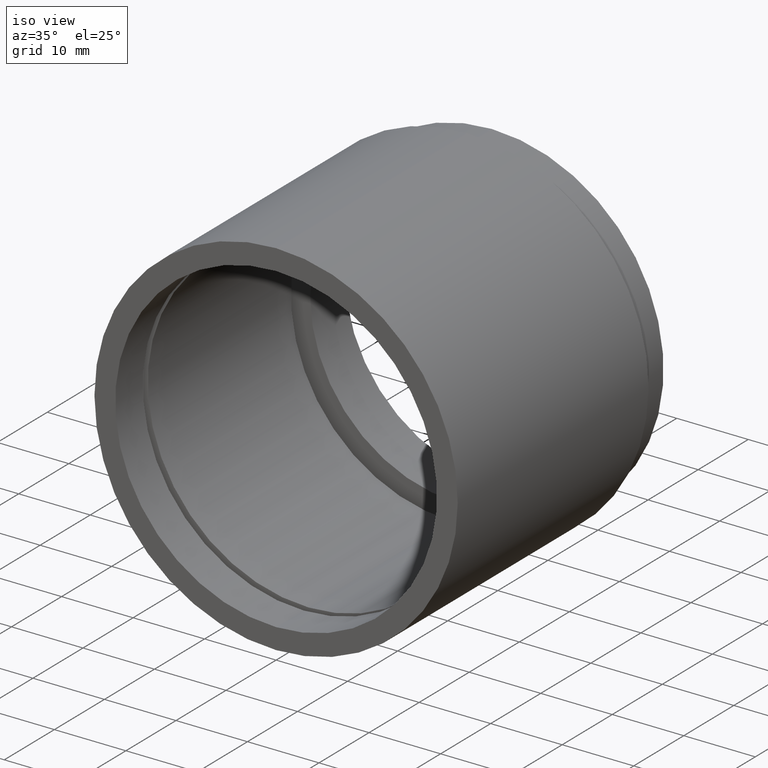
[diagram: clean part render]
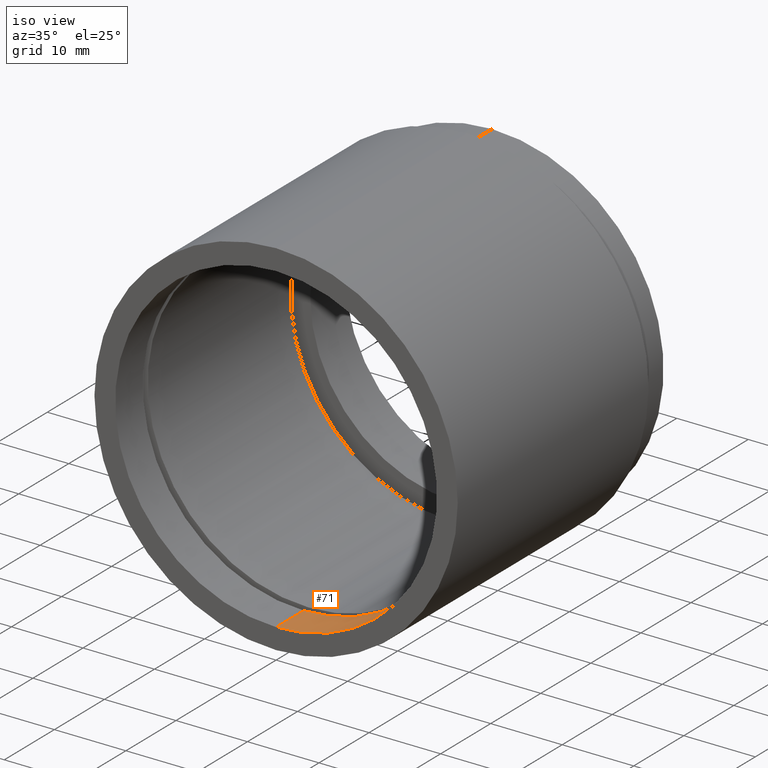
[diagram: same view with one face highlighted and labeled with its STEP entity id]
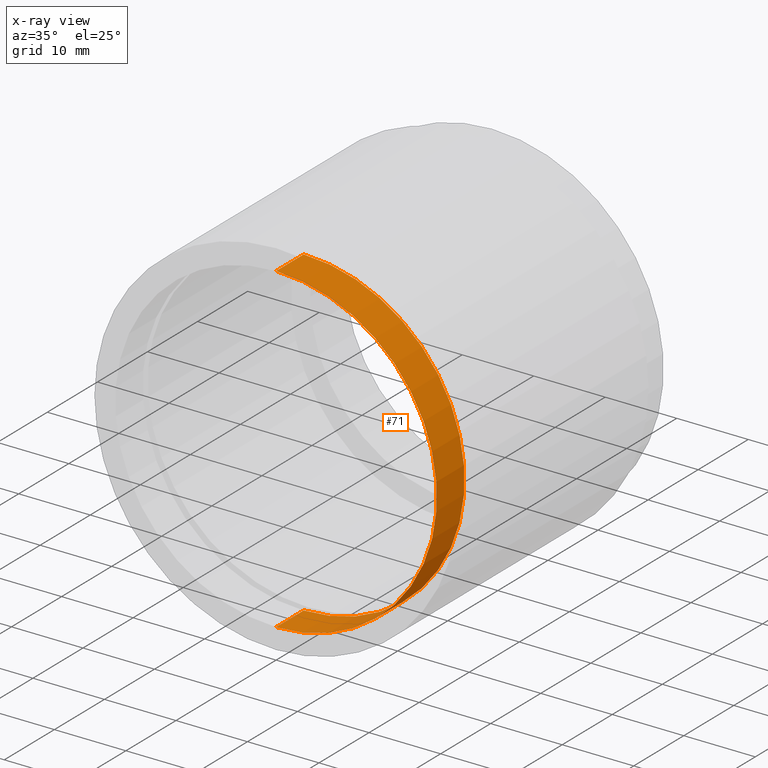
[diagram: x-ray of the same camera — body ghosted, the highlighted face saturated]
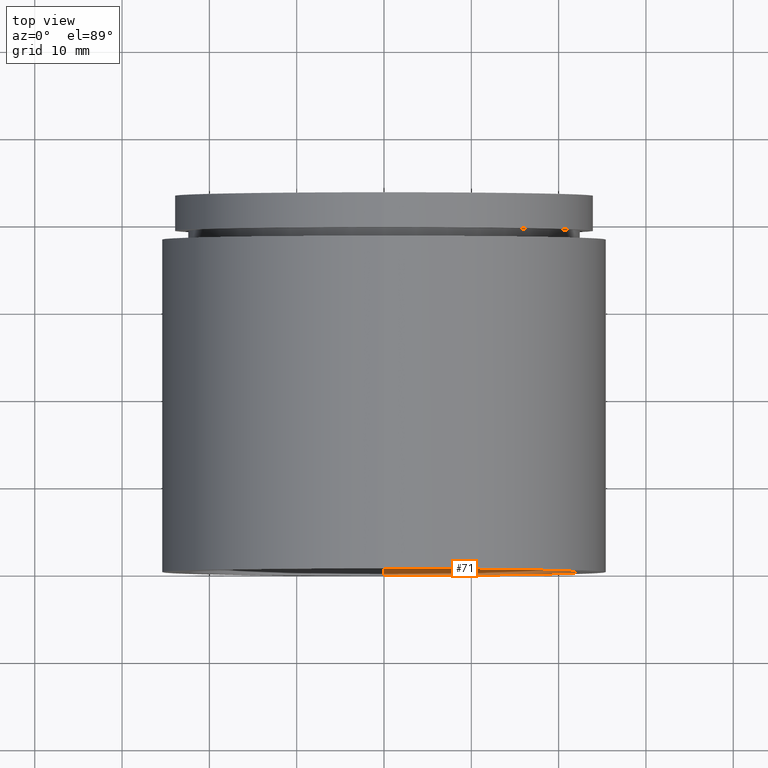
[diagram: same view with one face highlighted and labeled with its STEP entity id]
A machine part, iso view. The second image highlights one B-rep face of the part: STEP entity #71.
The next image is the same camera in x-ray: the body ghosted, the highlighted face saturated — about 0% of this face is hidden behind the body in this view.
A second angle (top view) of the same face is appended — the face is thin or edge-on in the first view.
In plain terms, the highlighted cylindrical surface (partial cylindrical patch) has radius 22.5 mm, axis along (-0, 1, -0).
Its self-contained STEP definition (entity closure, byte-faithful):
#6 = CARTESIAN_POINT ( 'NONE',  ( 0.0000000000000000000, 5.499999999999976900, 22.50000000000002100 ) ) ;
#42 = CIRCLE ( 'NONE', #115, 22.50000000000002100 ) ;
#44 = AXIS2_PLACEMENT_3D ( 'NONE', #615, #235, #729 ) ;
#47 = EDGE_LOOP ( 'NONE', ( #66, #762, #318, #506 ) ) ;
#61 = VECTOR ( 'NONE', #613, 1000.000000000000000 ) ;
#66 = ORIENTED_EDGE ( 'NONE', *, *, #218, .F. ) ;
#71 = ADVANCED_FACE ( 'NONE', ( #316 ), #699, .F. ) ;
#100 = LINE ( 'NONE', #370, #61 ) ;
#115 = AXIS2_PLACEMENT_3D ( 'NONE', #364, #797, #619 ) ;
#143 = CIRCLE ( 'NONE', #44, 22.50000000000002100 ) ;
#187 = CARTESIAN_POINT ( 'NONE',  ( 2.755455298081547100E-015, -2.775557561562891400E-014, -22.50000000000002100 ) ) ;
#189 = DIRECTION ( 'NONE',  ( 0.0000000000000000000, 0.0000000000000000000, 1.000000000000000000 ) ) ;
#218 = EDGE_CURVE ( 'NONE', #671, #586, #367, .T. ) ;
#235 = DIRECTION ( 'NONE',  ( -0.0000000000000000000, 1.000000000000000000, -0.0000000000000000000 ) ) ;
#244 = CARTESIAN_POINT ( 'NONE',  ( 2.755455298081547100E-015, 5.499999999999976900, -22.50000000000002100 ) ) ;
#261 = DIRECTION ( 'NONE',  ( -0.0000000000000000000, 1.000000000000000000, -0.0000000000000000000 ) ) ;
#283 = DIRECTION ( 'NONE',  ( -0.0000000000000000000, 1.000000000000000000, -0.0000000000000000000 ) ) ;
#316 = FACE_OUTER_BOUND ( 'NONE', #47, .T. ) ;
#318 = ORIENTED_EDGE ( 'NONE', *, *, #369, .T. ) ;
#364 = CARTESIAN_POINT ( 'NONE',  ( 0.0000000000000000000, 5.499999999999976900, 0.0000000000000000000 ) ) ;
#367 = LINE ( 'NONE', #398, #672 ) ;
#369 = EDGE_CURVE ( 'NONE', #771, #690, #100, .T. ) ;
#370 = CARTESIAN_POINT ( 'NONE',  ( 0.0000000000000000000, 161.3761669434274500, 22.50000000000002100 ) ) ;
#398 = CARTESIAN_POINT ( 'NONE',  ( 2.755455298081547100E-015, 161.3761669434274500, -22.50000000000002100 ) ) ;
#411 = EDGE_CURVE ( 'NONE', #771, #671, #143, .T. ) ;
#447 = AXIS2_PLACEMENT_3D ( 'NONE', #627, #261, #189 ) ;
#449 = CARTESIAN_POINT ( 'NONE',  ( 0.0000000000000000000, -2.775557561562891400E-014, 22.50000000000002100 ) ) ;
#453 = EDGE_CURVE ( 'NONE', #690, #586, #42, .T. ) ;
#506 = ORIENTED_EDGE ( 'NONE', *, *, #453, .T. ) ;
#586 = VERTEX_POINT ( 'NONE', #244 ) ;
#613 = DIRECTION ( 'NONE',  ( -0.0000000000000000000, 1.000000000000000000, -0.0000000000000000000 ) ) ;
#615 = CARTESIAN_POINT ( 'NONE',  ( 0.0000000000000000000, -2.775557561562891400E-014, 0.0000000000000000000 ) ) ;
#619 = DIRECTION ( 'NONE',  ( 0.0000000000000000000, 0.0000000000000000000, 1.000000000000000000 ) ) ;
#627 = CARTESIAN_POINT ( 'NONE',  ( 0.0000000000000000000, 161.3761669434274500, 0.0000000000000000000 ) ) ;
#671 = VERTEX_POINT ( 'NONE', #187 ) ;
#672 = VECTOR ( 'NONE', #283, 1000.000000000000000 ) ;
#690 = VERTEX_POINT ( 'NONE', #6 ) ;
#699 = CYLINDRICAL_SURFACE ( 'NONE', #447, 22.50000000000002100 ) ;
#729 = DIRECTION ( 'NONE',  ( 0.0000000000000000000, 0.0000000000000000000, 1.000000000000000000 ) ) ;
#762 = ORIENTED_EDGE ( 'NONE', *, *, #411, .F. ) ;
#771 = VERTEX_POINT ( 'NONE', #449 ) ;
#797 = DIRECTION ( 'NONE',  ( -0.0000000000000000000, 1.000000000000000000, -0.0000000000000000000 ) ) ;